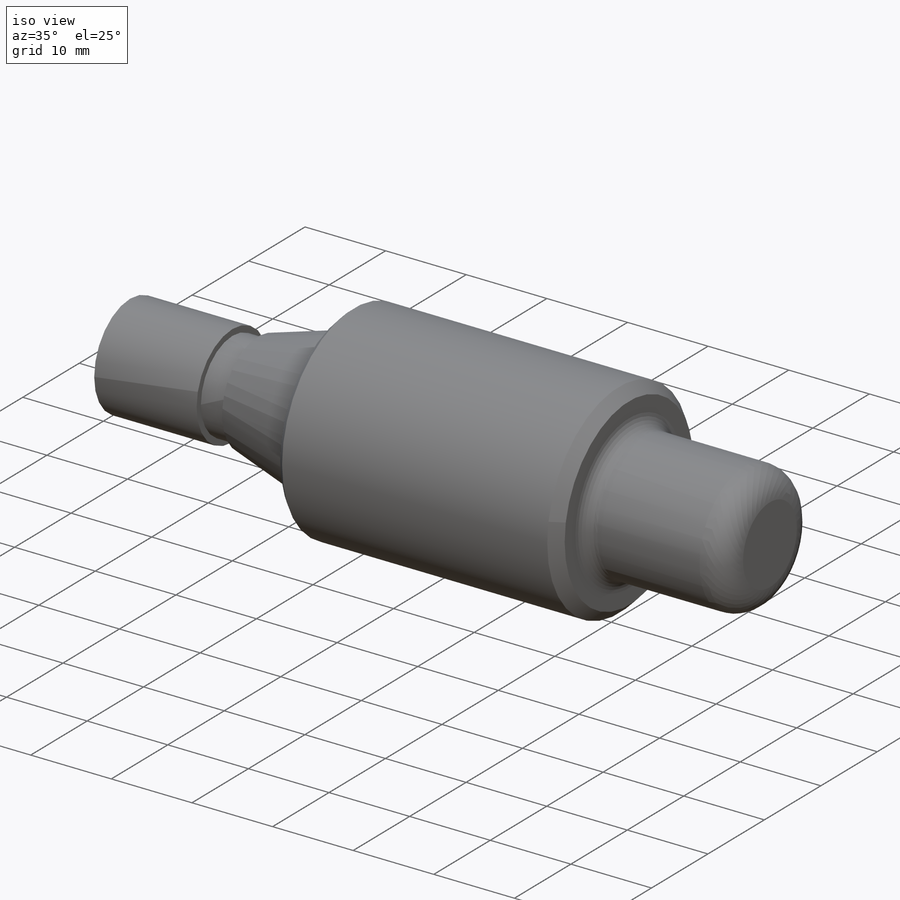
[diagram: iso view]
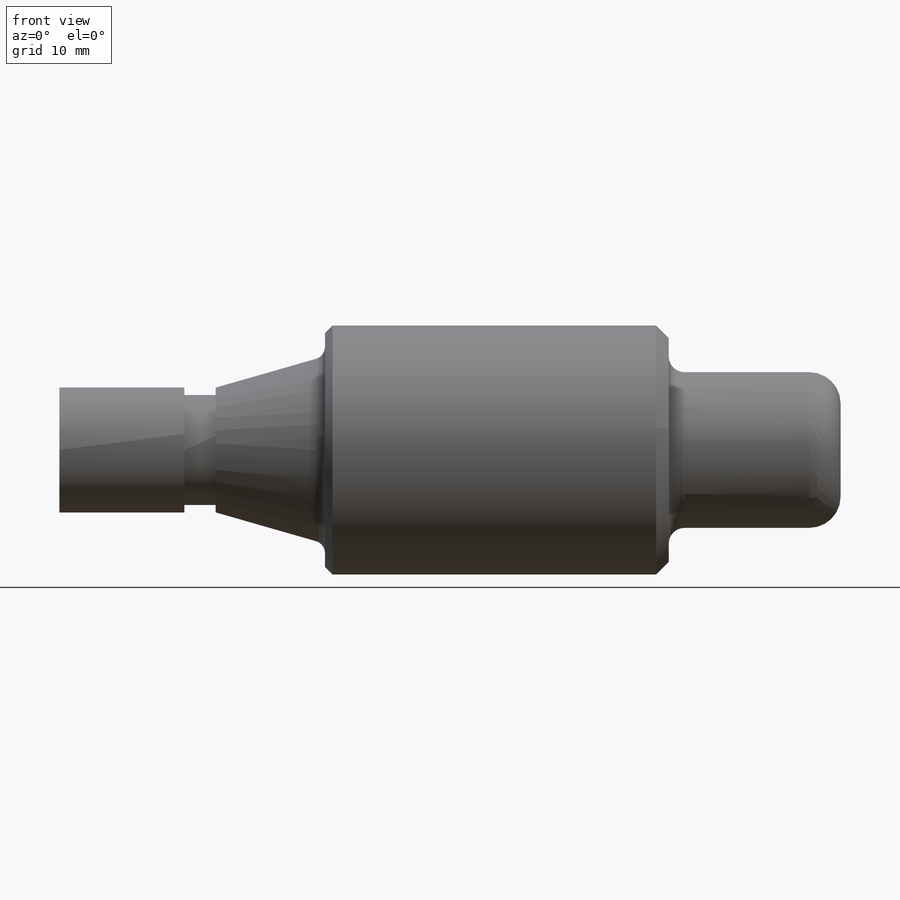
[diagram: front view]
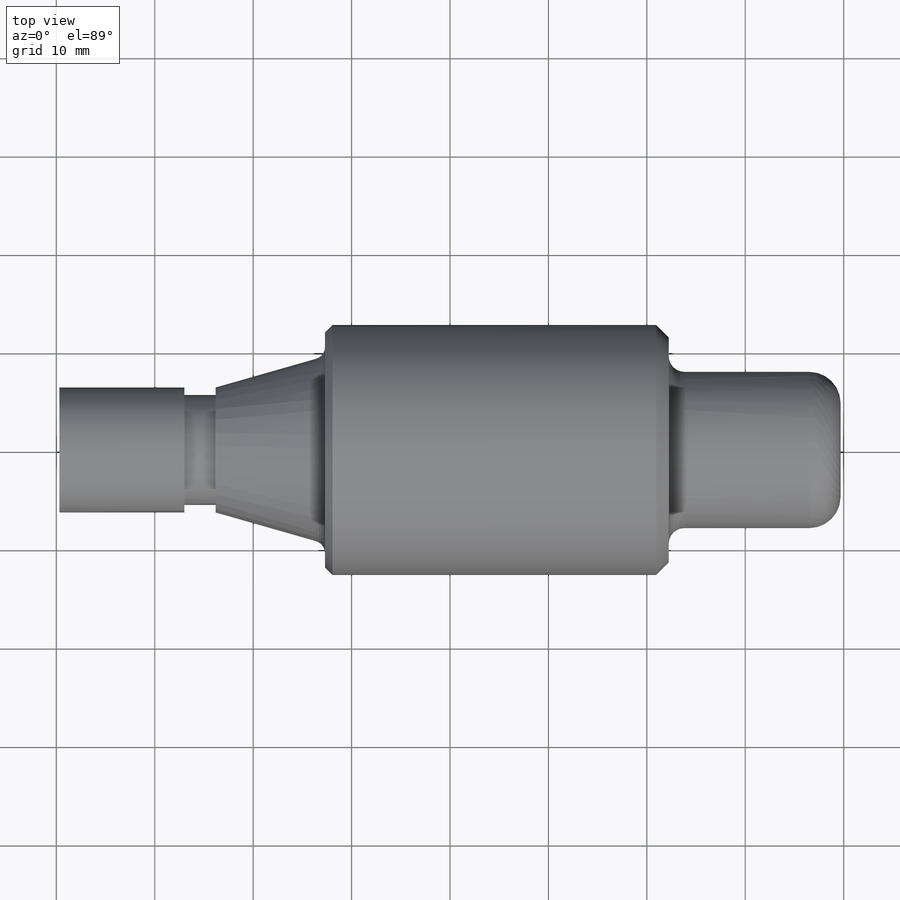
[diagram: top view]
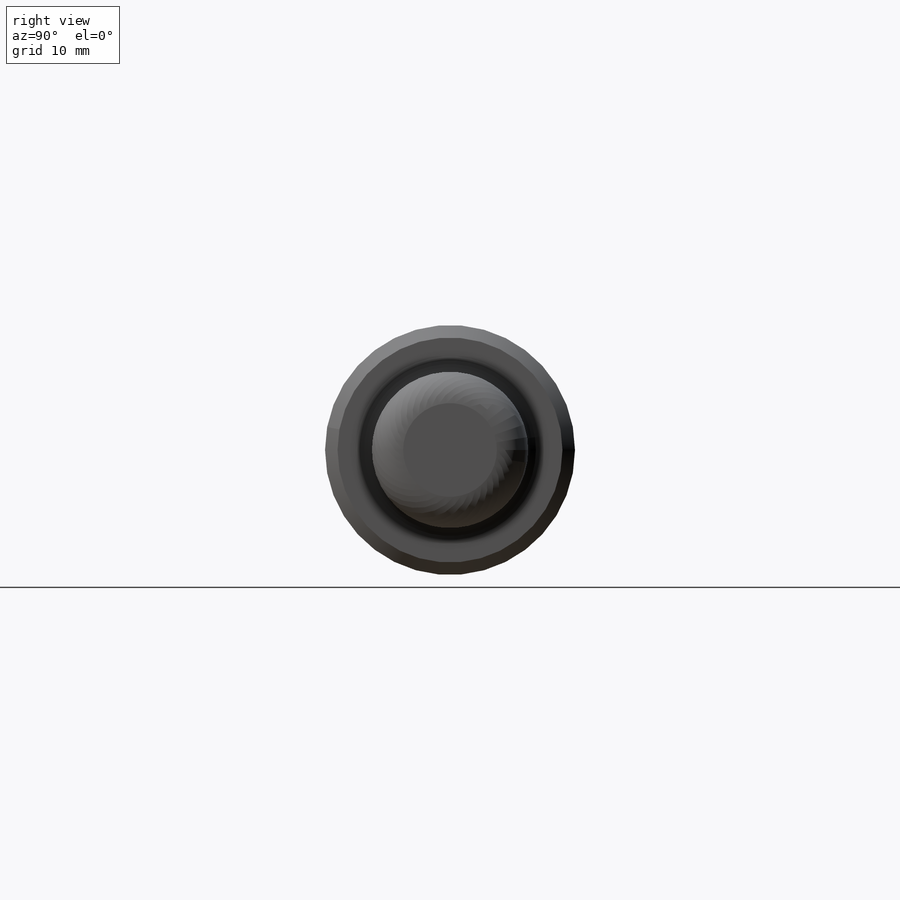
[diagram: right view]
SOLIDWORKS PART (.sldprt)
format: sldprt  version: not decoded by parser v0  size: 239,616 bytes
history: native  units: mm
features: sketch x6, cut_extrude x3, fillet x3, chamfer x2, material x1, extrude x1, thread x1, cut_revolve x1 (+12 scaffold rows collapsed)
feature tree (30):
  scaffold x12  (default folders/planes/origin — collapsed)
  material  "Material <not specified>"
  sketch  "Sketch2"  dims[D1=~31.103295mm]
  extrude  "Boss-Extrude1"  Depth=39.6875mm
  sketch  "Sketch3"  dims[D1=~8.554117mm]
  cut_extrude  "Cut-Extrude1"  Depth=17.4625mm
  fillet  "Fillet1"  Radius=3.175mm
  fillet  "Fillet2"  Radius=1.5875mm
  chamfer  "Chamfer1"  Distance=1.27mm Angle=45deg
  sketch  "Sketch4"  dims[D1=~4.09119mm]
  cut_extrude  "Cut-Extrude2"  [1 undecoded]
  thread  "Cosmetic Thread1"  Diameter=12.7mm  [1 undecoded]
  sketch  "Sketch6"  dims[D1=6.096mm]
  cut_extrude  "Cut-Extrude3"  Depth=3.175mm
  sketch  "Sketch12"  dims[D1=~8.526596mm]
  sketch  "Sketch13"
  cut_revolve  "Cut-Revolve1"  Angle=360deg
  fillet  "Fillet3"  Radius=1.27mm
  chamfer  "Chamfer2"  Distance=0.762mm Angle=45deg
decode coverage: 15 of 17 modeling features carry decoded parameters
note: ~ marks probable driven/reference dimensions
note: 2 parameter values undecoded
note: suppression state not decoded; provenance and decode notes live in map.json
